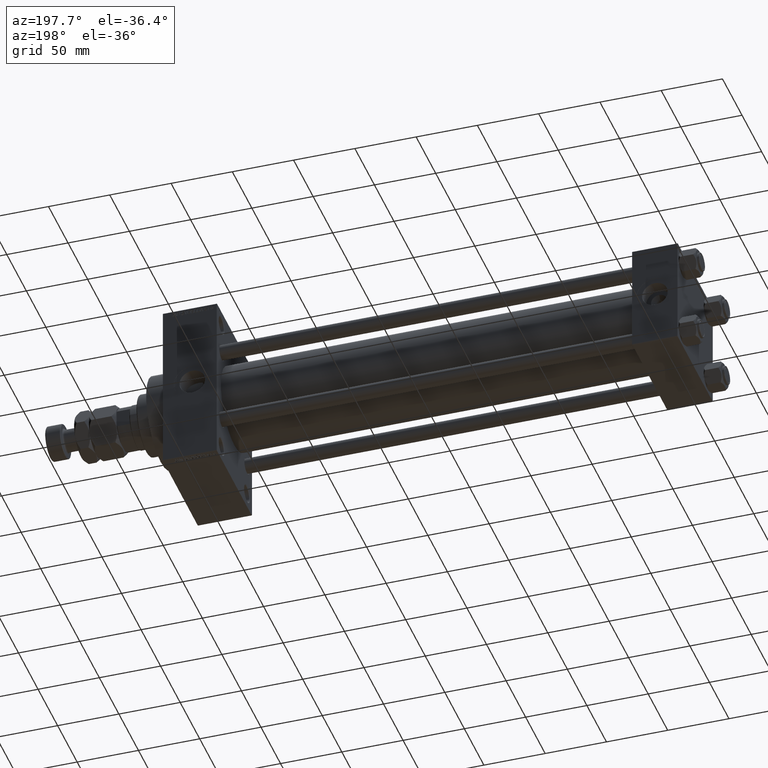
[diagram: clean part render]
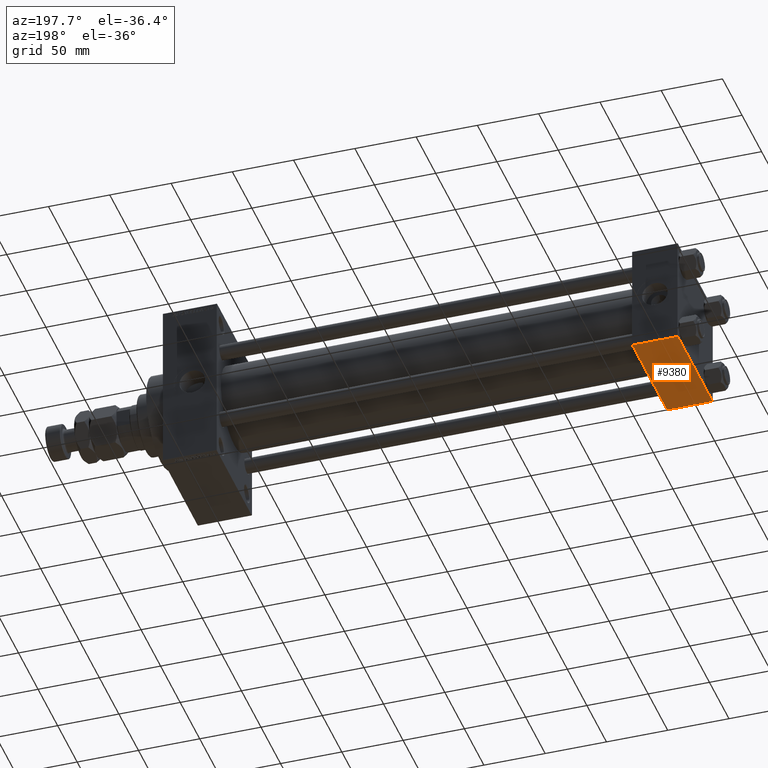
[diagram: same view with one face highlighted and labeled with its STEP entity id]
A machine part, auxiliary view. The second image highlights one B-rep face of the part: STEP entity #9380.
In plain terms, the highlighted planar face has unit normal (0, 0, -1).
Its self-contained STEP definition (entity closure, byte-faithful):
#1821 = CARTESIAN_POINT ( 'NONE',  ( 0.000000000000000000, -44.49999999999998579, -45.00000000000000000 ) ) ;
#1898 = VERTEX_POINT ( 'NONE', #23029 ) ;
#2896 = EDGE_CURVE ( 'NONE', #25780, #39104, #41333, .T. ) ;
#3960 = VECTOR ( 'NONE', #17568, 1000.000000000000000 ) ;
#4552 = EDGE_LOOP ( 'NONE', ( #27326, #7906, #30586, #47118 ) ) ;
#6624 = EDGE_CURVE ( 'NONE', #35932, #1898, #37157, .T. ) ;
#6781 = FACE_OUTER_BOUND ( 'NONE', #4552, .T. ) ;
#7906 = ORIENTED_EDGE ( 'NONE', *, *, #2896, .T. ) ;
#8374 = EDGE_CURVE ( 'NONE', #25780, #1898, #9587, .T. ) ;
#9380 = ADVANCED_FACE ( 'NONE', ( #6781 ), #22245, .T. ) ;
#9587 = LINE ( 'NONE', #37437, #3960 ) ;
#10030 = EDGE_CURVE ( 'NONE', #39104, #35932, #18593, .T. ) ;
#10872 = DIRECTION ( 'NONE',  ( 0.000000000000000000, -1.000000000000000000, -1.541976423090495633E-16 ) ) ;
#13490 = CARTESIAN_POINT ( 'NONE',  ( 37.00000000000000000, 44.49999999999998579, -44.99999999999998579 ) ) ;
#13517 = DIRECTION ( 'NONE',  ( 0.000000000000000000, 1.541976423090495880E-16, -1.000000000000000000 ) ) ;
#17389 = CARTESIAN_POINT ( 'NONE',  ( 37.00000000000000000, 44.49999999999998579, -44.99999999999998579 ) ) ;
#17568 = DIRECTION ( 'NONE',  ( 0.000000000000000000, -1.000000000000000000, -1.541976423090495633E-16 ) ) ;
#17954 = VECTOR ( 'NONE', #32005, 1000.000000000000000 ) ;
#18593 = LINE ( 'NONE', #42080, #21347 ) ;
#18626 = CARTESIAN_POINT ( 'NONE',  ( 37.00000000000000000, 44.99999999999998579, -44.99999999999998579 ) ) ;
#21347 = VECTOR ( 'NONE', #10872, 1000.000000000000000 ) ;
#22245 = PLANE ( 'NONE',  #36166 ) ;
#23029 = CARTESIAN_POINT ( 'NONE',  ( 0.000000000000000000, -44.49999999999995737, -45.00000000000000000 ) ) ;
#25780 = VERTEX_POINT ( 'NONE', #44798 ) ;
#27326 = ORIENTED_EDGE ( 'NONE', *, *, #8374, .F. ) ;
#29218 = DIRECTION ( 'NONE',  ( 1.000000000000000000, 0.000000000000000000, 0.000000000000000000 ) ) ;
#30586 = ORIENTED_EDGE ( 'NONE', *, *, #10030, .T. ) ;
#32005 = DIRECTION ( 'NONE',  ( -1.000000000000000000, 0.000000000000000000, 0.000000000000000000 ) ) ;
#32542 = CARTESIAN_POINT ( 'NONE',  ( 37.00000000000000000, -44.49999999999995737, -45.00000000000000000 ) ) ;
#35932 = VERTEX_POINT ( 'NONE', #32542 ) ;
#36166 = AXIS2_PLACEMENT_3D ( 'NONE', #18626, #13517, #44971 ) ;
#37157 = LINE ( 'NONE', #1821, #17954 ) ;
#37437 = CARTESIAN_POINT ( 'NONE',  ( 0.000000000000000000, 44.99999999999998579, -44.99999999999998579 ) ) ;
#39104 = VERTEX_POINT ( 'NONE', #17389 ) ;
#39349 = VECTOR ( 'NONE', #29218, 1000.000000000000000 ) ;
#41333 = LINE ( 'NONE', #13490, #39349 ) ;
#42080 = CARTESIAN_POINT ( 'NONE',  ( 37.00000000000000000, 44.99999999999998579, -44.99999999999998579 ) ) ;
#44798 = CARTESIAN_POINT ( 'NONE',  ( 0.000000000000000000, 44.49999999999998579, -44.99999999999998579 ) ) ;
#44971 = DIRECTION ( 'NONE',  ( 0.000000000000000000, 1.000000000000000000, 1.541976423090495880E-16 ) ) ;
#47118 = ORIENTED_EDGE ( 'NONE', *, *, #6624, .T. ) ;